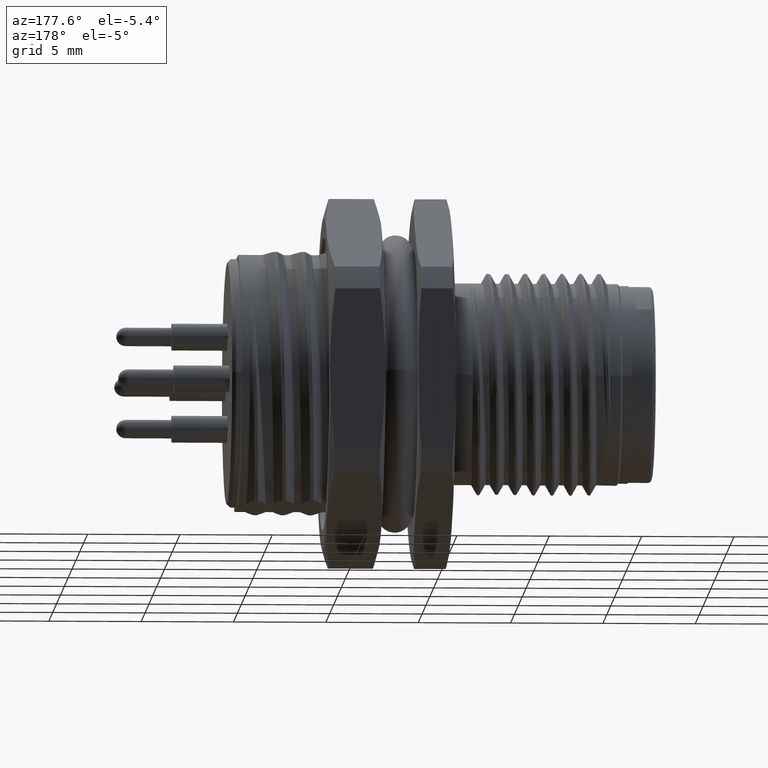
[diagram: clean part render]
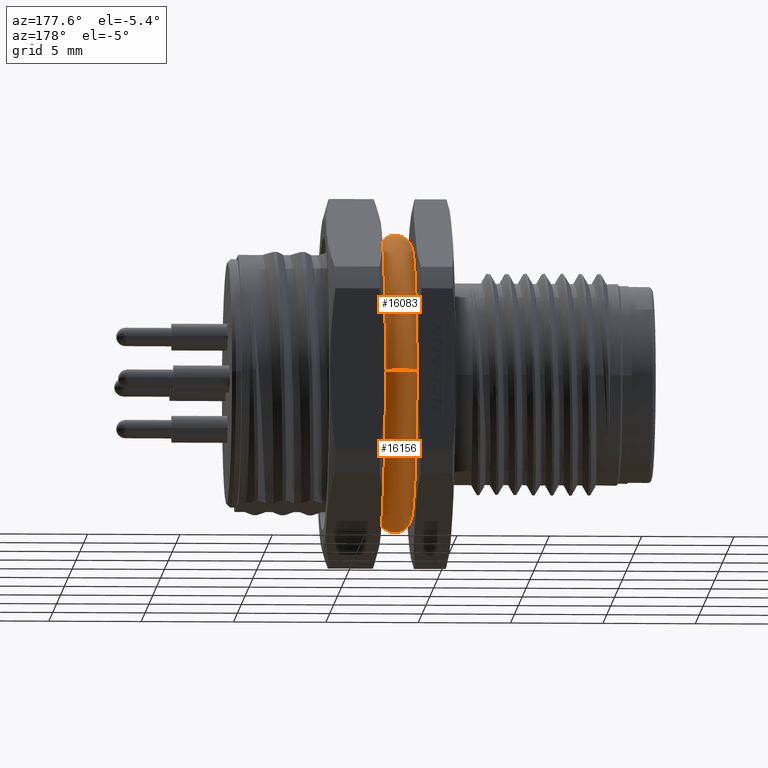
[diagram: same view with one multi-face feature highlighted, each face labeled with its STEP entity id]
A machine part, auxiliary view. The highlighted faces form ONE feature: a constant-radius fillet chain: 2 tangent blend faces with common blend radius 0.9 mm. The faces share edges in the B-rep.
Their STEP definitions:
[1] entity #16083 (Torus):
#1654=CARTESIAN_POINT('',(1.142050125629E1,2.390146859515E0,6.941002512578E0));
#1655=CARTESIAN_POINT('',(1.141469515603E1,2.264797945142E0,6.955890908331E0));
#1656=CARTESIAN_POINT('',(1.140633173797E1,2.008889365971E0,6.984321493351E0));
#1657=CARTESIAN_POINT('',(1.140074316411E1,1.609791156480E0,7.021302371958E0));
#1658=CARTESIAN_POINT('',(1.140000000295E1,1.332807064885E0,7.041343945848E0));
#1659=CARTESIAN_POINT('',(1.14E1,1.191638238277E0,7.049999969910E0));
#1671=CARTESIAN_POINT('',(1.14E1,-1.191638238202E0,7.049999969912E0));
#1672=CARTESIAN_POINT('',(1.140000000295E1,-1.332791755830E0,7.041344884551E0));
#1673=CARTESIAN_POINT('',(1.140074302141E1,-1.609755317279E0,7.021305161160E0));
#1674=CARTESIAN_POINT('',(1.140633061090E1,-2.008840137225E0,6.984326589357E0));
#1675=CARTESIAN_POINT('',(1.141469417830E1,-2.264776836806E0,6.955893415487E0));
#1676=CARTESIAN_POINT('',(1.142050125629E1,-2.390146859515E0,6.941002512578E0));
#1688=CARTESIAN_POINT('',(1.14E1,1.191638238277E0,7.049999969910E0));
#1689=CARTESIAN_POINT('',(1.139999999255E1,1.093793649634E0,7.028141702806E0));
#1690=CARTESIAN_POINT('',(1.140476510995E1,8.973146786415E-1,6.989207637740E0));
#1691=CARTESIAN_POINT('',(1.141720442536E1,5.992765572995E-1,6.947957108765E0));
#1692=CARTESIAN_POINT('',(1.142759269384E1,2.994529182506E-1,6.923988855535E0));
#1693=CARTESIAN_POINT('',(1.143150971079E1,-1.208186870717E-3,
6.916224189548E0));
#1694=CARTESIAN_POINT('',(1.142753635455E1,-3.014372625233E-1,
6.924105742935E0));
#1695=CARTESIAN_POINT('',(1.141715558624E1,-6.004016932719E-1,
6.948097989861E0));
#1696=CARTESIAN_POINT('',(1.140475962109E1,-8.975624993229E-1,
6.989262071179E0));
#1697=CARTESIAN_POINT('',(1.139999999255E1,-1.093837016669E0,7.028151390931E0));
#1698=CARTESIAN_POINT('',(1.14E1,-1.191638238202E0,7.049999969912E0));
#1704=CARTESIAN_POINT('',(1.23E1,7.149996985274E0,6.565860796043E-3));
#1705=DIRECTION('',(0.E0,9.183022092371E-4,-9.999995783604E-1));
#1706=DIRECTION('',(-9.772208263449E-1,2.122249244950E-1,1.948866991909E-4));
#1707=AXIS2_PLACEMENT_3D('',#1704,#1705,#1706);
#1709=CARTESIAN_POINT('',(1.23E1,-7.149996985274E0,-6.565860796042E-3));
#1710=DIRECTION('',(0.E0,9.183022092370E-4,-9.999995783604E-1));
#1711=DIRECTION('',(1.E0,-3.276391503783E-12,0.E0));
#1712=AXIS2_PLACEMENT_3D('',#1709,#1710,#1711);
#1714=CARTESIAN_POINT('',(1.142050125629E1,0.E0,0.E0));
#1715=DIRECTION('',(1.E0,0.E0,0.E0));
#1716=DIRECTION('',(0.E0,9.999995783604E-1,9.183022092370E-4));
#1717=AXIS2_PLACEMENT_3D('',#1714,#1715,#1716);
#1774=CARTESIAN_POINT('',(1.32E1,0.E0,0.E0));
#1775=DIRECTION('',(1.E0,0.E0,0.E0));
#1776=DIRECTION('',(0.E0,-3.297853460854E-1,9.440559440559E-1));
#1777=AXIS2_PLACEMENT_3D('',#1774,#1775,#1776);
#1795=CARTESIAN_POINT('',(1.32E1,-2.357965224510E0,6.75E0));
#1796=CARTESIAN_POINT('',(1.32E1,-2.191443745102E0,6.75E0));
#1797=CARTESIAN_POINT('',(1.319002564641E1,-1.852691712956E0,6.75E0));
#1798=CARTESIAN_POINT('',(1.315774559166E1,-1.316303566158E0,6.75E0));
#1799=CARTESIAN_POINT('',(1.312514724772E1,-7.848033532364E-1,6.75E0));
#1800=CARTESIAN_POINT('',(1.310541535594E1,-2.608315288738E-1,6.75E0));
#1801=CARTESIAN_POINT('',(1.310543887998E1,2.623930800433E-1,6.75E0));
#1802=CARTESIAN_POINT('',(1.312527018275E1,7.872198217583E-1,6.75E0));
#1803=CARTESIAN_POINT('',(1.315792175046E1,1.319016182753E0,6.75E0));
#1804=CARTESIAN_POINT('',(1.319002921475E1,1.853075005795E0,6.75E0));
#1805=CARTESIAN_POINT('',(1.32E1,2.191529262062E0,6.75E0));
#1806=CARTESIAN_POINT('',(1.32E1,2.357965224510E0,6.75E0));
#2943=CARTESIAN_POINT('',(1.32E1,0.E0,0.E0));
#2944=DIRECTION('',(1.E0,0.E0,0.E0));
#2945=DIRECTION('',(0.E0,9.999995783604E-1,9.183022092367E-4));
#2946=AXIS2_PLACEMENT_3D('',#2943,#2944,#2945);
#4321=CARTESIAN_POINT('',(1.142050125629E1,0.E0,0.E0));
#4322=DIRECTION('',(1.E0,0.E0,0.E0));
#4323=DIRECTION('',(0.E0,-3.255886175519E-1,9.455115293431E-1));
#4324=AXIS2_PLACEMENT_3D('',#4321,#4322,#4323);
#14529=VERTEX_POINT('',#1795);
#14530=VERTEX_POINT('',#1806);
#14531=CARTESIAN_POINT('',(1.32E1,7.149996985277E0,6.565860796042E-3));
#14532=VERTEX_POINT('',#14531);
#14535=CARTESIAN_POINT('',(1.142050125629E1,7.340999417320E0,
6.741258825314E-3));
#14536=CARTESIAN_POINT('',(1.142050125629E1,2.390146859515E0,6.941002512578E0));
#14537=VERTEX_POINT('',#14535);
#14538=VERTEX_POINT('',#14536);
#14541=CARTESIAN_POINT('',(1.142050125629E1,-2.390146859515E0,
6.941002512578E0));
#14542=CARTESIAN_POINT('',(1.142050125629E1,-7.340999417320E0,
-6.741258825314E-3));
#14543=VERTEX_POINT('',#14541);
#14544=VERTEX_POINT('',#14542);
#14547=VERTEX_POINT('',#1659);
#14548=VERTEX_POINT('',#1671);
#14549=CARTESIAN_POINT('',(1.32E1,-7.149996985277E0,-6.565860796045E-3));
#14550=VERTEX_POINT('',#14549);
#16059=CARTESIAN_POINT('',(1.23E1,0.E0,0.E0));
#16060=DIRECTION('',(1.E0,0.E0,0.E0));
#16061=DIRECTION('',(0.E0,-9.999995783604E-1,-9.183022092372E-4));
#16062=AXIS2_PLACEMENT_3D('',#16059,#16060,#16061);
#16063=TOROIDAL_SURFACE('',#16062,7.149999999997E0,8.999999999998E-1);
#16064=ORIENTED_EDGE('',*,*,#16040,.F.);
#16065=ORIENTED_EDGE('',*,*,#16053,.F.);
#16066=ORIENTED_EDGE('',*,*,#16027,.F.);
#16068=ORIENTED_EDGE('',*,*,#16067,.F.);
#16070=ORIENTED_EDGE('',*,*,#16069,.T.);
#16072=ORIENTED_EDGE('',*,*,#16071,.T.);
#16074=ORIENTED_EDGE('',*,*,#16073,.F.);
#16076=ORIENTED_EDGE('',*,*,#16075,.T.);
#16078=ORIENTED_EDGE('',*,*,#16077,.T.);
#16080=ORIENTED_EDGE('',*,*,#16079,.F.);
#16081=EDGE_LOOP('',(#16064,#16065,#16066,#16068,#16070,#16072,#16074,#16076,
#16078,#16080));
#16082=FACE_OUTER_BOUND('',#16081,.F.);
#16083=ADVANCED_FACE('',(#16082),#16063,.T.);
#1660=B_SPLINE_CURVE_WITH_KNOTS('',3,(#1654,#1655,#1656,#1657,#1658,#1659),
.UNSPECIFIED.,.F.,.F.,(4,1,1,4),(0.E0,3.333333333333E-1,6.666666666667E-1,1.E0),
.UNSPECIFIED.);
#1677=B_SPLINE_CURVE_WITH_KNOTS('',3,(#1671,#1672,#1673,#1674,#1675,#1676),
.UNSPECIFIED.,.F.,.F.,(4,1,1,4),(0.E0,3.333333333333E-1,6.666666666667E-1,1.E0),
.UNSPECIFIED.);
#1699=B_SPLINE_CURVE_WITH_KNOTS('',3,(#1688,#1689,#1690,#1691,#1692,#1693,#1694,
#1695,#1696,#1697,#1698),.UNSPECIFIED.,.F.,.F.,(4,1,1,1,1,1,1,1,4),(0.E0,
1.25E-1,2.5E-1,3.75E-1,5.E-1,6.25E-1,7.5E-1,8.75E-1,1.E0),.UNSPECIFIED.);
#1708=CIRCLE('',#1707,8.999999999998E-1);
#1713=CIRCLE('',#1712,8.999999999998E-1);
#1718=CIRCLE('',#1717,7.341002512577E0);
#1778=CIRCLE('',#1777,7.15E0);
#1807=B_SPLINE_CURVE_WITH_KNOTS('',3,(#1795,#1796,#1797,#1798,#1799,#1800,#1801,
#1802,#1803,#1804,#1805,#1806),.UNSPECIFIED.,.F.,.F.,(4,1,1,1,1,1,1,1,1,4),
(0.E0,1.111111111111E-1,2.222222222222E-1,3.333333333333E-1,4.444444444444E-1,
5.555555555556E-1,6.666666666667E-1,7.777777777778E-1,8.888888888889E-1,1.E0),
.UNSPECIFIED.);
#2947=CIRCLE('',#2946,7.15E0);
#4325=CIRCLE('',#4324,7.341002512577E0);
#16027=EDGE_CURVE('',#14538,#14547,#1660,.T.);
#16040=EDGE_CURVE('',#14548,#14543,#1677,.T.);
#16053=EDGE_CURVE('',#14547,#14548,#1699,.T.);
#16067=EDGE_CURVE('',#14537,#14538,#1718,.T.);
#16069=EDGE_CURVE('',#14537,#14532,#1708,.T.);
#16071=EDGE_CURVE('',#14532,#14530,#2947,.T.);
#16073=EDGE_CURVE('',#14529,#14530,#1807,.T.);
#16075=EDGE_CURVE('',#14529,#14550,#1778,.T.);
#16077=EDGE_CURVE('',#14550,#14544,#1713,.T.);
#16079=EDGE_CURVE('',#14543,#14544,#4325,.T.);
[2] entity #16156 (Torus):
#1704=CARTESIAN_POINT('',(1.23E1,7.149996985274E0,6.565860796043E-3));
#1705=DIRECTION('',(0.E0,9.183022092371E-4,-9.999995783604E-1));
#1706=DIRECTION('',(-9.772208263449E-1,2.122249244950E-1,1.948866991909E-4));
#1707=AXIS2_PLACEMENT_3D('',#1704,#1705,#1706);
#1709=CARTESIAN_POINT('',(1.23E1,-7.149996985274E0,-6.565860796042E-3));
#1710=DIRECTION('',(0.E0,9.183022092370E-4,-9.999995783604E-1));
#1711=DIRECTION('',(1.E0,-3.276391503783E-12,0.E0));
#1712=AXIS2_PLACEMENT_3D('',#1709,#1710,#1711);
#1719=CARTESIAN_POINT('',(1.142050125629E1,0.E0,0.E0));
#1720=DIRECTION('',(1.E0,0.E0,0.E0));
#1721=DIRECTION('',(0.E0,3.255886175519E-1,-9.455115293431E-1));
#1722=AXIS2_PLACEMENT_3D('',#1719,#1720,#1721);
#1724=CARTESIAN_POINT('',(1.142050125629E1,-2.390146859515E0,
-6.941002512578E0));
#1725=CARTESIAN_POINT('',(1.141469515603E1,-2.264797945142E0,
-6.955890908331E0));
#1726=CARTESIAN_POINT('',(1.140633173797E1,-2.008889365971E0,
-6.984321493351E0));
#1727=CARTESIAN_POINT('',(1.140074316411E1,-1.609791156480E0,
-7.021302371958E0));
#1728=CARTESIAN_POINT('',(1.140000000295E1,-1.332807064885E0,
-7.041343945848E0));
#1729=CARTESIAN_POINT('',(1.14E1,-1.191638238277E0,-7.049999969910E0));
#1741=CARTESIAN_POINT('',(1.14E1,1.191638238202E0,-7.049999969912E0));
#1742=CARTESIAN_POINT('',(1.140000000295E1,1.332791755830E0,-7.041344884551E0));
#1743=CARTESIAN_POINT('',(1.140074302141E1,1.609755317279E0,-7.021305161160E0));
#1744=CARTESIAN_POINT('',(1.140633061090E1,2.008840137225E0,-6.984326589357E0));
#1745=CARTESIAN_POINT('',(1.141469417830E1,2.264776836806E0,-6.955893415487E0));
#1746=CARTESIAN_POINT('',(1.142050125629E1,2.390146859515E0,-6.941002512578E0));
#1758=CARTESIAN_POINT('',(1.14E1,-1.191638238277E0,-7.049999969910E0));
#1759=CARTESIAN_POINT('',(1.139999999255E1,-1.093793649634E0,
-7.028141702806E0));
#1760=CARTESIAN_POINT('',(1.140476510995E1,-8.973146786415E-1,
-6.989207637740E0));
#1761=CARTESIAN_POINT('',(1.141720442536E1,-5.992765572995E-1,
-6.947957108765E0));
#1762=CARTESIAN_POINT('',(1.142759269384E1,-2.994529182506E-1,
-6.923988855535E0));
#1763=CARTESIAN_POINT('',(1.143150971079E1,1.208186870719E-3,
-6.916224189548E0));
#1764=CARTESIAN_POINT('',(1.142753635455E1,3.014372625233E-1,
-6.924105742935E0));
#1765=CARTESIAN_POINT('',(1.141715558624E1,6.004016932719E-1,
-6.948097989861E0));
#1766=CARTESIAN_POINT('',(1.140475962109E1,8.975624993229E-1,
-6.989262071179E0));
#1767=CARTESIAN_POINT('',(1.139999999255E1,1.093837016669E0,-7.028151390931E0));
#1768=CARTESIAN_POINT('',(1.14E1,1.191638238202E0,-7.049999969912E0));
#1783=CARTESIAN_POINT('',(1.32E1,0.E0,0.E0));
#1784=DIRECTION('',(1.E0,0.E0,0.E0));
#1785=DIRECTION('',(0.E0,-9.999995783604E-1,-9.183022092371E-4));
#1786=AXIS2_PLACEMENT_3D('',#1783,#1784,#1785);
#2648=CARTESIAN_POINT('',(1.32E1,2.357965224510E0,-6.75E0));
#2649=CARTESIAN_POINT('',(1.32E1,2.191443745102E0,-6.75E0));
#2650=CARTESIAN_POINT('',(1.319002564641E1,1.852691712956E0,-6.75E0));
#2651=CARTESIAN_POINT('',(1.315774559166E1,1.316303566158E0,-6.75E0));
#2652=CARTESIAN_POINT('',(1.312514724772E1,7.848033532364E-1,-6.75E0));
#2653=CARTESIAN_POINT('',(1.310541535594E1,2.608315288738E-1,-6.75E0));
#2654=CARTESIAN_POINT('',(1.310543887998E1,-2.623930800433E-1,-6.75E0));
#2655=CARTESIAN_POINT('',(1.312527018275E1,-7.872198217583E-1,-6.75E0));
#2656=CARTESIAN_POINT('',(1.315792175046E1,-1.319016182753E0,-6.75E0));
#2657=CARTESIAN_POINT('',(1.319002921475E1,-1.853075005795E0,-6.75E0));
#2658=CARTESIAN_POINT('',(1.32E1,-2.191529262062E0,-6.75E0));
#2659=CARTESIAN_POINT('',(1.32E1,-2.357965224510E0,-6.75E0));
#2948=CARTESIAN_POINT('',(1.32E1,0.E0,0.E0));
#2949=DIRECTION('',(1.E0,0.E0,0.E0));
#2950=DIRECTION('',(0.E0,3.297853460854E-1,-9.440559440559E-1));
#2951=AXIS2_PLACEMENT_3D('',#2948,#2949,#2950);
#4326=CARTESIAN_POINT('',(1.142050125629E1,0.E0,0.E0));
#4327=DIRECTION('',(1.E0,0.E0,0.E0));
#4328=DIRECTION('',(0.E0,-9.999995783604E-1,-9.183022092369E-4));
#4329=AXIS2_PLACEMENT_3D('',#4326,#4327,#4328);
#14531=CARTESIAN_POINT('',(1.32E1,7.149996985277E0,6.565860796042E-3));
#14532=VERTEX_POINT('',#14531);
#14533=CARTESIAN_POINT('',(1.32E1,2.357965224510E0,-6.75E0));
#14534=VERTEX_POINT('',#14533);
#14535=CARTESIAN_POINT('',(1.142050125629E1,7.340999417320E0,
6.741258825314E-3));
#14537=VERTEX_POINT('',#14535);
#14539=CARTESIAN_POINT('',(1.142050125629E1,2.390146859515E0,
-6.941002512578E0));
#14540=VERTEX_POINT('',#14539);
#14542=CARTESIAN_POINT('',(1.142050125629E1,-7.340999417320E0,
-6.741258825314E-3));
#14544=VERTEX_POINT('',#14542);
#14545=CARTESIAN_POINT('',(1.142050125629E1,-2.390146859515E0,
-6.941002512578E0));
#14546=VERTEX_POINT('',#14545);
#14549=CARTESIAN_POINT('',(1.32E1,-7.149996985277E0,-6.565860796045E-3));
#14550=VERTEX_POINT('',#14549);
#14551=CARTESIAN_POINT('',(1.32E1,-2.357965224510E0,-6.75E0));
#14552=VERTEX_POINT('',#14551);
#14553=VERTEX_POINT('',#1729);
#14554=VERTEX_POINT('',#1741);
#16135=CARTESIAN_POINT('',(1.23E1,0.E0,0.E0));
#16136=DIRECTION('',(1.E0,0.E0,0.E0));
#16137=DIRECTION('',(0.E0,-9.999995783604E-1,-9.183022092372E-4));
#16138=AXIS2_PLACEMENT_3D('',#16135,#16136,#16137);
#16139=TOROIDAL_SURFACE('',#16138,7.149999999997E0,8.999999999998E-1);
#16141=ORIENTED_EDGE('',*,*,#16140,.T.);
#16143=ORIENTED_EDGE('',*,*,#16142,.F.);
#16145=ORIENTED_EDGE('',*,*,#16144,.T.);
#16146=ORIENTED_EDGE('',*,*,#16069,.F.);
#16147=ORIENTED_EDGE('',*,*,#16094,.F.);
#16148=ORIENTED_EDGE('',*,*,#16117,.F.);
#16149=ORIENTED_EDGE('',*,*,#16129,.F.);
#16150=ORIENTED_EDGE('',*,*,#16104,.F.);
#16152=ORIENTED_EDGE('',*,*,#16151,.F.);
#16153=ORIENTED_EDGE('',*,*,#16077,.F.);
#16154=EDGE_LOOP('',(#16141,#16143,#16145,#16146,#16147,#16148,#16149,#16150,
#16152,#16153));
#16155=FACE_OUTER_BOUND('',#16154,.F.);
#16156=ADVANCED_FACE('',(#16155),#16139,.T.);
#1708=CIRCLE('',#1707,8.999999999998E-1);
#1713=CIRCLE('',#1712,8.999999999998E-1);
#1723=CIRCLE('',#1722,7.341002512577E0);
#1730=B_SPLINE_CURVE_WITH_KNOTS('',3,(#1724,#1725,#1726,#1727,#1728,#1729),
.UNSPECIFIED.,.F.,.F.,(4,1,1,4),(0.E0,3.333333333333E-1,6.666666666667E-1,1.E0),
.UNSPECIFIED.);
#1747=B_SPLINE_CURVE_WITH_KNOTS('',3,(#1741,#1742,#1743,#1744,#1745,#1746),
.UNSPECIFIED.,.F.,.F.,(4,1,1,4),(0.E0,3.333333333333E-1,6.666666666667E-1,1.E0),
.UNSPECIFIED.);
#1769=B_SPLINE_CURVE_WITH_KNOTS('',3,(#1758,#1759,#1760,#1761,#1762,#1763,#1764,
#1765,#1766,#1767,#1768),.UNSPECIFIED.,.F.,.F.,(4,1,1,1,1,1,1,1,4),(0.E0,
1.25E-1,2.5E-1,3.75E-1,5.E-1,6.25E-1,7.5E-1,8.75E-1,1.E0),.UNSPECIFIED.);
#1787=CIRCLE('',#1786,7.15E0);
#2660=B_SPLINE_CURVE_WITH_KNOTS('',3,(#2648,#2649,#2650,#2651,#2652,#2653,#2654,
#2655,#2656,#2657,#2658,#2659),.UNSPECIFIED.,.F.,.F.,(4,1,1,1,1,1,1,1,1,4),
(0.E0,1.111111111111E-1,2.222222222222E-1,3.333333333333E-1,4.444444444444E-1,
5.555555555556E-1,6.666666666667E-1,7.777777777778E-1,8.888888888889E-1,1.E0),
.UNSPECIFIED.);
#2952=CIRCLE('',#2951,7.15E0);
#4330=CIRCLE('',#4329,7.341002512577E0);
#16069=EDGE_CURVE('',#14537,#14532,#1708,.T.);
#16077=EDGE_CURVE('',#14550,#14544,#1713,.T.);
#16094=EDGE_CURVE('',#14540,#14537,#1723,.T.);
#16104=EDGE_CURVE('',#14546,#14553,#1730,.T.);
#16117=EDGE_CURVE('',#14554,#14540,#1747,.T.);
#16129=EDGE_CURVE('',#14553,#14554,#1769,.T.);
#16140=EDGE_CURVE('',#14550,#14552,#1787,.T.);
#16142=EDGE_CURVE('',#14534,#14552,#2660,.T.);
#16144=EDGE_CURVE('',#14534,#14532,#2952,.T.);
#16151=EDGE_CURVE('',#14544,#14546,#4330,.T.);